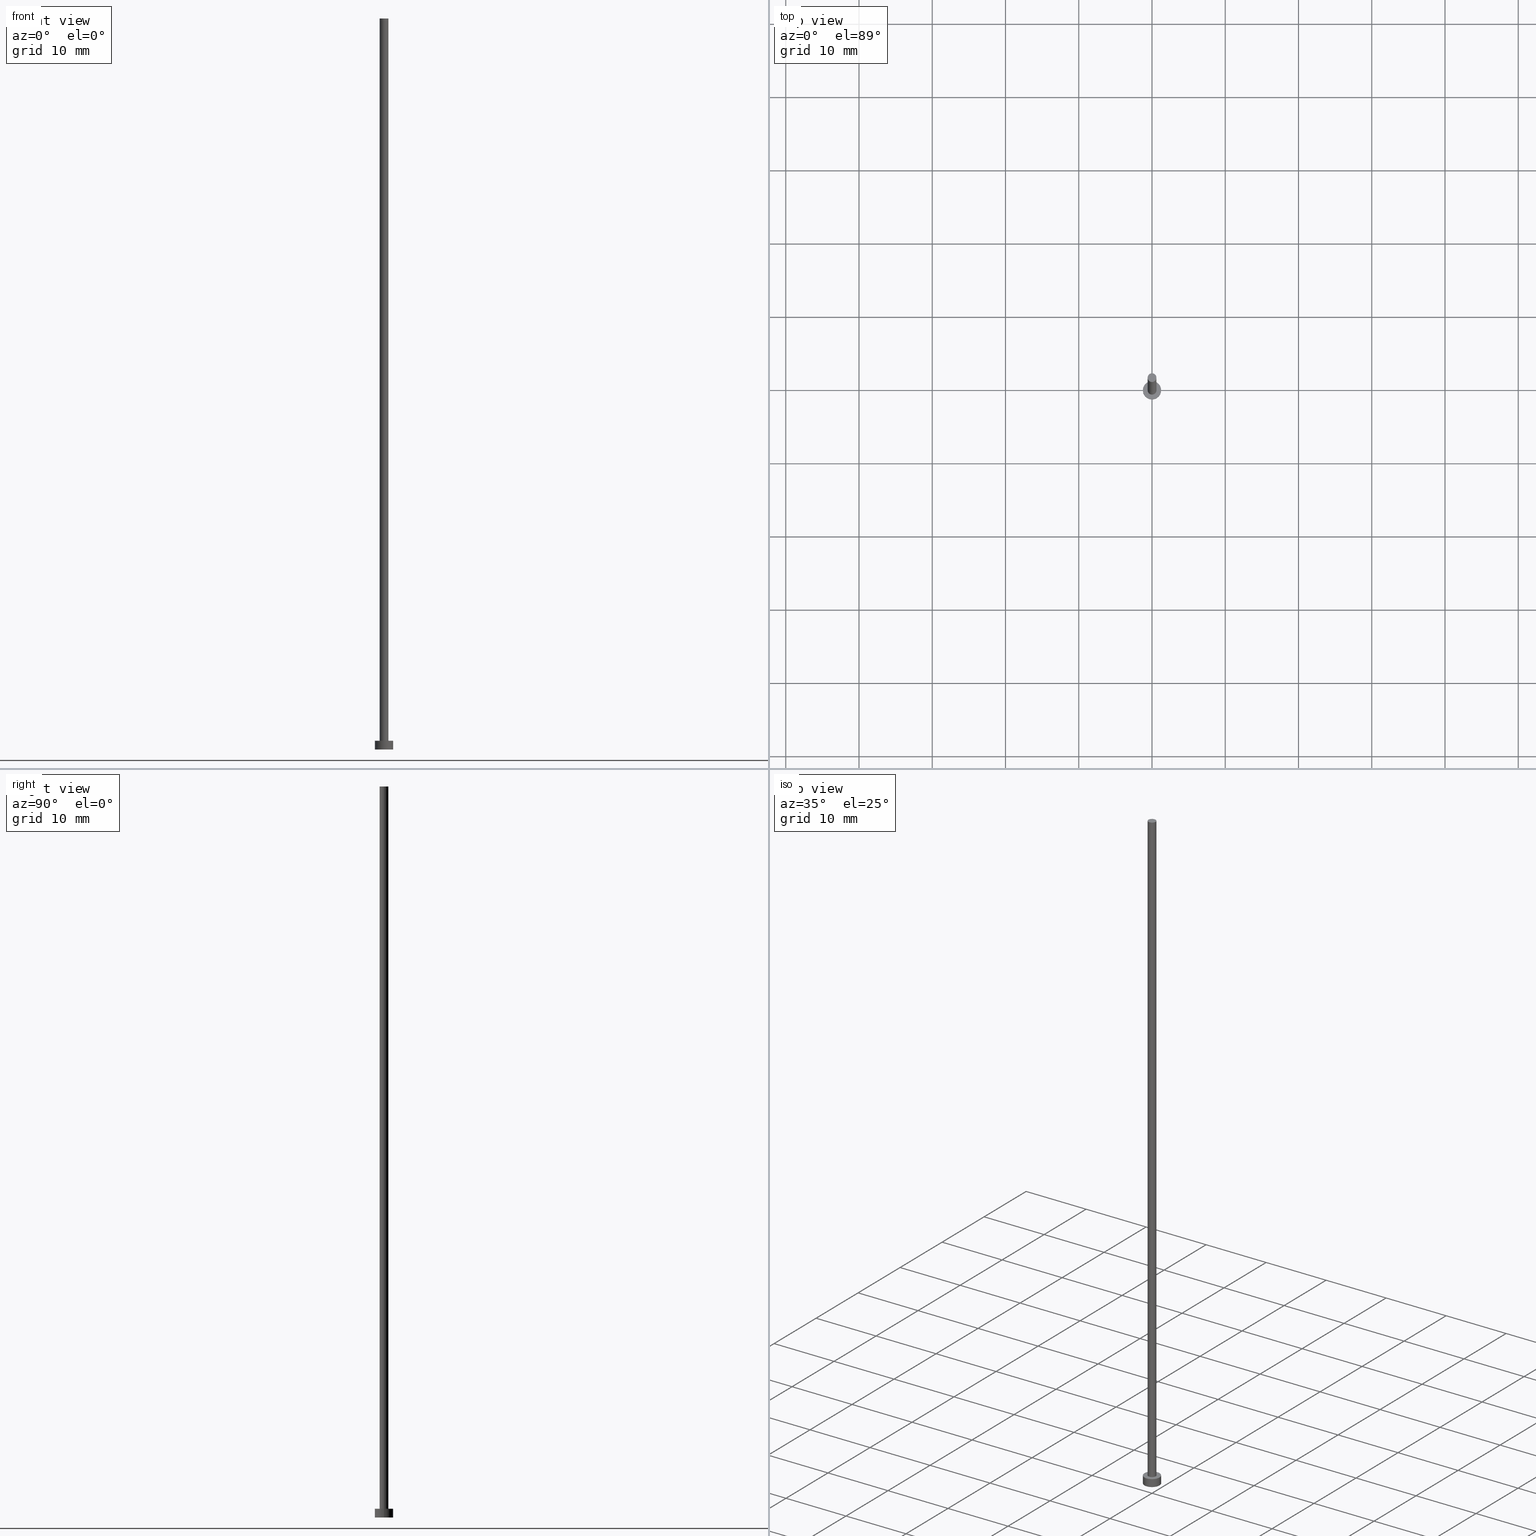
[diagram: canonical four-view strip — front | top / right | iso, engineering-drawing reading convention]
A machine part, canonical four-view strip (front | top / right | iso — engineering-drawing reading convention). The complete STEP part file that produces these views, byte-faithful:
ISO-10303-21;
HEADER;
FILE_DESCRIPTION (( 'STEP AP203' ),
    '1' );
FILE_NAME ('b9a1.STEP',
    '2023-03-08T08:14:58',
    ( '' ),
    ( '' ),
    'SwSTEP 2.0',
    'SolidWorks 2019',
    '' );
FILE_SCHEMA (( 'CONFIG_CONTROL_DESIGN' ));
ENDSEC;

DATA;
#1 = CALENDAR_DATE ( 2023, 8, 3 ) ;
#2 = DIRECTION ( 'NONE',  ( 1.000000000000000000, 0.000000000000000000, 0.000000000000000000 ) ) ;
#3 = ORIENTED_EDGE ( 'NONE', *, *, #179, .T. ) ;
#4 = CC_DESIGN_PERSON_AND_ORGANIZATION_ASSIGNMENT ( #163, #156, ( #100 ) ) ;
#5 = PERSON ( 'NEUR�EN�', 'NEUR�EN�', 'NEUR�EN�', ('NEUR�EN�'), ('NEUR�EN�'), ('NEUR�EN�') ) ;
#6 = DATE_TIME_ROLE ( 'classification_date' ) ;
#7 = VERTEX_POINT ( 'NONE', #85 ) ;
#8 = EDGE_LOOP ( 'NONE', ( #138, #244, #229, #241 ) ) ;
#9 = ORIENTED_EDGE ( 'NONE', *, *, #203, .F. ) ;
#10 = DIRECTION ( 'NONE',  ( 1.000000000000000000, 0.000000000000000000, 0.000000000000000000 ) ) ;
#11 = CIRCLE ( 'NONE', #110, 0.5999999999999999778 ) ;
#12 = CARTESIAN_POINT ( 'NONE',  ( -0.5999999999999999778, 0.000000000000000000, 1.199999999999999956 ) ) ;
#13 = APPROVAL ( #130, 'NEUR�EN�' ) ;
#14 = CARTESIAN_POINT ( 'NONE',  ( 0.000000000000000000, 0.000000000000000000, 99.79999999999999716 ) ) ;
#15 = CARTESIAN_POINT ( 'NONE',  ( -1.250000000000000000, 0.000000000000000000, 1.199999999999999956 ) ) ;
#16 = AXIS2_PLACEMENT_3D ( 'NONE', #52, #251, #98 ) ;
#17 = LINE ( 'NONE', #150, #80 ) ;
#18 = CC_DESIGN_DATE_AND_TIME_ASSIGNMENT ( #157, #6, ( #162 ) ) ;
#19 = APPLICATION_PROTOCOL_DEFINITION ( 'international standard', 'config_control_design', 1994, #25 ) ;
#20 = COORDINATED_UNIVERSAL_TIME_OFFSET ( 1, 0, .AHEAD. ) ;
#21 = DIRECTION ( 'NONE',  ( 1.000000000000000000, 0.000000000000000000, 0.000000000000000000 ) ) ;
#22 = PERSON_AND_ORGANIZATION ( #5, #212 ) ;
#23 = PRODUCT_RELATED_PRODUCT_CATEGORY ( 'detail', '', ( #204 ) ) ;
#24 = EDGE_LOOP ( 'NONE', ( #107, #225 ) ) ;
#25 = APPLICATION_CONTEXT ( 'configuration controlled 3d designs of mechanical parts and assemblies' ) ;
#26 = APPROVAL_DATE_TIME ( #205, #175 ) ;
#27 = VERTEX_POINT ( 'NONE', #67 ) ;
#28 = CC_DESIGN_APPROVAL ( #13, ( #137 ) ) ;
#29 = ADVANCED_FACE ( 'NONE', ( #159, #228 ), #73, .T. ) ;
#30 = DIRECTION ( 'NONE',  ( 1.000000000000000000, 0.000000000000000000, 0.000000000000000000 ) ) ;
#31 = CARTESIAN_POINT ( 'NONE',  ( 1.250000000000000000, 1.530808498934191571E-16, 0.000000000000000000 ) ) ;
#32 = EDGE_CURVE ( 'NONE', #83, #42, #145, .T. ) ;
#33 = CIRCLE ( 'NONE', #118, 1.250000000000000000 ) ;
#34 = DIRECTION ( 'NONE',  ( -1.000000000000000000, 0.000000000000000000, 0.000000000000000000 ) ) ;
#35 = CARTESIAN_POINT ( 'NONE',  ( 1.250000000000000000, 1.530808498934191571E-16, 1.199999999999999956 ) ) ;
#36 = CARTESIAN_POINT ( 'NONE',  ( 0.000000000000000000, 0.000000000000000000, 1.199999999999999956 ) ) ;
#37 = APPROVAL_DATE_TIME ( #255, #13 ) ;
#38 = CC_DESIGN_DATE_AND_TIME_ASSIGNMENT ( #197, #103, ( #137 ) ) ;
#39 = DIRECTION ( 'NONE',  ( 1.000000000000000000, 0.000000000000000000, 0.000000000000000000 ) ) ;
#40 = EDGE_CURVE ( 'NONE', #7, #46, #214, .T. ) ;
#41 = PERSON_AND_ORGANIZATION_ROLE ( 'classification_officer' ) ;
#42 = VERTEX_POINT ( 'NONE', #12 ) ;
#43 = ORIENTED_EDGE ( 'NONE', *, *, #199, .F. ) ;
#44 = CIRCLE ( 'NONE', #191, 1.250000000000000000 ) ;
#45 = CALENDAR_DATE ( 2023, 8, 3 ) ;
#46 = VERTEX_POINT ( 'NONE', #128 ) ;
#47 = ADVANCED_FACE ( 'NONE', ( #124 ), #126, .T. ) ;
#48 = ORIENTED_EDGE ( 'NONE', *, *, #122, .F. ) ;
#49 = LOCAL_TIME ( 9, 14, 58.00000000000000000, #224 ) ;
#50 = CARTESIAN_POINT ( 'NONE',  ( 0.000000000000000000, 0.000000000000000000, 99.79999999999999716 ) ) ;
#51 = DIRECTION ( 'NONE',  ( 1.000000000000000000, 0.000000000000000000, 0.000000000000000000 ) ) ;
#52 = CARTESIAN_POINT ( 'NONE',  ( 0.000000000000000000, 0.000000000000000000, 0.000000000000000000 ) ) ;
#53 = CARTESIAN_POINT ( 'NONE',  ( 0.000000000000000000, 0.000000000000000000, 99.79999999999999716 ) ) ;
#54 = DIRECTION ( 'NONE',  ( -0.000000000000000000, -0.000000000000000000, -1.000000000000000000 ) ) ;
#55 = DIRECTION ( 'NONE',  ( -0.000000000000000000, -0.000000000000000000, -1.000000000000000000 ) ) ;
#56 = CIRCLE ( 'NONE', #200, 0.5999999999999999778 ) ;
#57 = COORDINATED_UNIVERSAL_TIME_OFFSET ( 1, 0, .AHEAD. ) ;
#58 = AXIS2_PLACEMENT_3D ( 'NONE', #112, #171, #10 ) ;
#59 = PERSON_AND_ORGANIZATION ( #5, #212 ) ;
#60 = ADVANCED_FACE ( 'NONE', ( #169 ), #215, .T. ) ;
#61 = APPROVAL_DATE_TIME ( #81, #149 ) ;
#62 =( NAMED_UNIT ( * ) SI_UNIT ( $, .STERADIAN. ) SOLID_ANGLE_UNIT ( ) );
#63 = CALENDAR_DATE ( 2023, 8, 3 ) ;
#64 = EDGE_LOOP ( 'NONE', ( #164, #139 ) ) ;
#65 = AXIS2_PLACEMENT_3D ( 'NONE', #14, #108, #253 ) ;
#66 =( GEOMETRIC_REPRESENTATION_CONTEXT ( 3 ) GLOBAL_UNCERTAINTY_ASSIGNED_CONTEXT ( ( #208 ) ) GLOBAL_UNIT_ASSIGNED_CONTEXT ( ( #102, #131, #62 ) ) REPRESENTATION_CONTEXT ( 'NONE', 'WORKASPACE' ) );
#67 = CARTESIAN_POINT ( 'NONE',  ( 1.250000000000000000, 1.530808498934191571E-16, 1.199999999999999956 ) ) ;
#68 = CARTESIAN_POINT ( 'NONE',  ( 0.000000000000000000, 0.000000000000000000, 99.79999999999999716 ) ) ;
#69 = AXIS2_PLACEMENT_3D ( 'NONE', #209, #143, #190 ) ;
#70 = EDGE_CURVE ( 'NONE', #42, #46, #11, .T. ) ;
#71 = DIRECTION ( 'NONE',  ( 0.000000000000000000, 0.000000000000000000, 1.000000000000000000 ) ) ;
#72 = FACE_OUTER_BOUND ( 'NONE', #90, .T. ) ;
#73 = PLANE ( 'NONE',  #69 ) ;
#74 = ADVANCED_BREP_SHAPE_REPRESENTATION ( 'b9a1', ( #117, #243 ), #66 ) ;
#75 = DIRECTION ( 'NONE',  ( 0.000000000000000000, 0.000000000000000000, 1.000000000000000000 ) ) ;
#76 = APPROVAL_ROLE ( '' ) ;
#77 = PERSON_AND_ORGANIZATION_ROLE ( 'creator' ) ;
#78 = AXIS2_PLACEMENT_3D ( 'NONE', #125, #54, #34 ) ;
#79 = ADVANCED_FACE ( 'NONE', ( #72 ), #211, .F. ) ;
#80 = VECTOR ( 'NONE', #55, 1000.000000000000000 ) ;
#81 = DATE_AND_TIME ( #1, #134 ) ;
#82 = EDGE_CURVE ( 'NONE', #83, #7, #56, .T. ) ;
#83 = VERTEX_POINT ( 'NONE', #233 ) ;
#84 = APPROVAL_STATUS ( 'not_yet_approved' ) ;
#85 = CARTESIAN_POINT ( 'NONE',  ( 0.5999999999999999778, 7.347880794884117764E-17, 99.79999999999999716 ) ) ;
#86 = ADVANCED_FACE ( 'NONE', ( #127 ), #170, .T. ) ;
#87 = SECURITY_CLASSIFICATION_LEVEL ( 'unclassified' ) ;
#88 = VERTEX_POINT ( 'NONE', #31 ) ;
#89 = PERSON_AND_ORGANIZATION_ROLE ( 'creator' ) ;
#90 = EDGE_LOOP ( 'NONE', ( #9, #187 ) ) ;
#91 = LINE ( 'NONE', #35, #168 ) ;
#92 = EDGE_CURVE ( 'NONE', #88, #183, #151, .T. ) ;
#93 = CARTESIAN_POINT ( 'NONE',  ( 0.000000000000000000, 0.000000000000000000, 1.199999999999999956 ) ) ;
#94 = AXIS2_PLACEMENT_3D ( 'NONE', #36, #249, #113 ) ;
#95 = CARTESIAN_POINT ( 'NONE',  ( 0.000000000000000000, 0.000000000000000000, 1.199999999999999956 ) ) ;
#96 = DIRECTION ( 'NONE',  ( 0.000000000000000000, 0.000000000000000000, 1.000000000000000000 ) ) ;
#97 = ADVANCED_FACE ( 'NONE', ( #192 ), #193, .T. ) ;
#98 = DIRECTION ( 'NONE',  ( 1.000000000000000000, 0.000000000000000000, -0.000000000000000000 ) ) ;
#99 = VECTOR ( 'NONE', #252, 1000.000000000000000 ) ;
#100 = PRODUCT_DEFINITION_FORMATION_WITH_SPECIFIED_SOURCE ( 'LIBOVOLN�', '', #204, .NOT_KNOWN. ) ;
#101 = COORDINATED_UNIVERSAL_TIME_OFFSET ( 1, 0, .AHEAD. ) ;
#102 =( LENGTH_UNIT ( ) NAMED_UNIT ( * ) SI_UNIT ( .MILLI., .METRE. ) );
#103 = DATE_TIME_ROLE ( 'creation_date' ) ;
#104 = CARTESIAN_POINT ( 'NONE',  ( 0.000000000000000000, 0.000000000000000000, 1.199999999999999956 ) ) ;
#105 = AXIS2_PLACEMENT_3D ( 'NONE', #53, #248, #231 ) ;
#106 = ORIENTED_EDGE ( 'NONE', *, *, #237, .T. ) ;
#107 = ORIENTED_EDGE ( 'NONE', *, *, #199, .T. ) ;
#108 = DIRECTION ( 'NONE',  ( -0.000000000000000000, -0.000000000000000000, -1.000000000000000000 ) ) ;
#109 = DIRECTION ( 'NONE',  ( 1.000000000000000000, 0.000000000000000000, -0.000000000000000000 ) ) ;
#110 = AXIS2_PLACEMENT_3D ( 'NONE', #95, #167, #232 ) ;
#111 = CARTESIAN_POINT ( 'NONE',  ( 0.000000000000000000, 0.000000000000000000, 0.000000000000000000 ) ) ;
#112 = CARTESIAN_POINT ( 'NONE',  ( 0.000000000000000000, 0.000000000000000000, 1.199999999999999956 ) ) ;
#113 = DIRECTION ( 'NONE',  ( 1.000000000000000000, 0.000000000000000000, 0.000000000000000000 ) ) ;
#114 = APPROVAL_PERSON_ORGANIZATION ( #173, #149, #76 ) ;
#115 = CARTESIAN_POINT ( 'NONE',  ( 0.000000000000000000, 0.000000000000000000, 0.000000000000000000 ) ) ;
#116 = APPLICATION_PROTOCOL_DEFINITION ( 'international standard', 'config_control_design', 1994, #227 ) ;
#117 = MANIFOLD_SOLID_BREP ( 'P�idat vysunut�m3', #180 ) ;
#118 = AXIS2_PLACEMENT_3D ( 'NONE', #93, #96, #188 ) ;
#119 = PERSON_AND_ORGANIZATION ( #5, #212 ) ;
#120 = CARTESIAN_POINT ( 'NONE',  ( 0.000000000000000000, 0.000000000000000000, 99.79999999999999716 ) ) ;
#121 = VERTEX_POINT ( 'NONE', #15 ) ;
#122 = EDGE_CURVE ( 'NONE', #27, #121, #33, .T. ) ;
#123 = ORIENTED_EDGE ( 'NONE', *, *, #179, .F. ) ;
#124 = FACE_OUTER_BOUND ( 'NONE', #8, .T. ) ;
#125 = CARTESIAN_POINT ( 'NONE',  ( 0.000000000000000000, 0.000000000000000000, 1.199999999999999956 ) ) ;
#126 = CYLINDRICAL_SURFACE ( 'NONE', #105, 0.5999999999999999778 ) ;
#127 = FACE_OUTER_BOUND ( 'NONE', #153, .T. ) ;
#128 = CARTESIAN_POINT ( 'NONE',  ( 0.5999999999999999778, 7.347880794884117764E-17, 1.199999999999999956 ) ) ;
#129 = EDGE_CURVE ( 'NONE', #27, #88, #91, .T. ) ;
#130 = APPROVAL_STATUS ( 'not_yet_approved' ) ;
#131 =( NAMED_UNIT ( * ) PLANE_ANGLE_UNIT ( ) SI_UNIT ( $, .RADIAN. ) );
#132 = LOCAL_TIME ( 9, 14, 58.00000000000000000, #101 ) ;
#133 = APPROVAL_PERSON_ORGANIZATION ( #119, #13, #155 ) ;
#134 = LOCAL_TIME ( 9, 14, 58.00000000000000000, #57 ) ;
#135 = PERSON_AND_ORGANIZATION ( #5, #212 ) ;
#136 = ORIENTED_EDGE ( 'NONE', *, *, #129, .F. ) ;
#137 = PRODUCT_DEFINITION ( 'NEZN�M�', '', #100, #140 ) ;
#138 = ORIENTED_EDGE ( 'NONE', *, *, #40, .F. ) ;
#139 = ORIENTED_EDGE ( 'NONE', *, *, #230, .T. ) ;
#140 = DESIGN_CONTEXT ( 'detailed design', #25, 'design' ) ;
#141 = SHAPE_DEFINITION_REPRESENTATION ( #154, #74 ) ;
#142 = ORIENTED_EDGE ( 'NONE', *, *, #203, .T. ) ;
#143 = DIRECTION ( 'NONE',  ( 0.000000000000000000, 0.000000000000000000, 1.000000000000000000 ) ) ;
#144 = CC_DESIGN_APPROVAL ( #149, ( #100 ) ) ;
#145 = LINE ( 'NONE', #148, #99 ) ;
#146 = DIRECTION ( 'NONE',  ( 0.000000000000000000, 0.000000000000000000, 1.000000000000000000 ) ) ;
#147 = DIRECTION ( 'NONE',  ( 0.000000000000000000, 0.000000000000000000, 1.000000000000000000 ) ) ;
#148 = CARTESIAN_POINT ( 'NONE',  ( -0.5999999999999999778, 0.000000000000000000, 99.79999999999999716 ) ) ;
#149 = APPROVAL ( #238, 'NEUR�EN�' ) ;
#150 = CARTESIAN_POINT ( 'NONE',  ( -1.250000000000000000, 0.000000000000000000, 1.199999999999999956 ) ) ;
#151 = CIRCLE ( 'NONE', #222, 1.250000000000000000 ) ;
#152 = CIRCLE ( 'NONE', #94, 1.250000000000000000 ) ;
#153 = EDGE_LOOP ( 'NONE', ( #136, #43, #106, #142 ) ) ;
#154 = PRODUCT_DEFINITION_SHAPE ( 'NONE', 'NONE',  #137 ) ;
#155 = APPROVAL_ROLE ( '' ) ;
#156 = PERSON_AND_ORGANIZATION_ROLE ( 'design_supplier' ) ;
#157 = DATE_AND_TIME ( #45, #186 ) ;
#158 = ORIENTED_EDGE ( 'NONE', *, *, #32, .F. ) ;
#159 = FACE_BOUND ( 'NONE', #219, .T. ) ;
#160 = EDGE_LOOP ( 'NONE', ( #221, #201, #3, #158 ) ) ;
#161 = CIRCLE ( 'NONE', #58, 0.5999999999999999778 ) ;
#162 = SECURITY_CLASSIFICATION ( '', '', #87 ) ;
#163 = PERSON_AND_ORGANIZATION ( #5, #212 ) ;
#164 = ORIENTED_EDGE ( 'NONE', *, *, #82, .T. ) ;
#165 = DIRECTION ( 'NONE',  ( -0.000000000000000000, -0.000000000000000000, -1.000000000000000000 ) ) ;
#166 = AXIS2_PLACEMENT_3D ( 'NONE', #68, #146, #109 ) ;
#167 = DIRECTION ( 'NONE',  ( 0.000000000000000000, 0.000000000000000000, 1.000000000000000000 ) ) ;
#168 = VECTOR ( 'NONE', #165, 1000.000000000000000 ) ;
#169 = FACE_OUTER_BOUND ( 'NONE', #64, .T. ) ;
#170 = CYLINDRICAL_SURFACE ( 'NONE', #78, 1.250000000000000000 ) ;
#171 = DIRECTION ( 'NONE',  ( 0.000000000000000000, 0.000000000000000000, 1.000000000000000000 ) ) ;
#172 = AXIS2_PLACEMENT_3D ( 'NONE', #104, #217, #216 ) ;
#173 = PERSON_AND_ORGANIZATION ( #5, #212 ) ;
#174 = FACE_OUTER_BOUND ( 'NONE', #181, .T. ) ;
#175 = APPROVAL ( #84, 'NEUR�EN�' ) ;
#176 = CC_DESIGN_SECURITY_CLASSIFICATION ( #162, ( #100 ) ) ;
#177 = CYLINDRICAL_SURFACE ( 'NONE', #172, 1.250000000000000000 ) ;
#178 = DIRECTION ( 'NONE',  ( 0.000000000000000000, 0.000000000000000000, 1.000000000000000000 ) ) ;
#179 = EDGE_CURVE ( 'NONE', #46, #42, #161, .T. ) ;
#180 = CLOSED_SHELL ( 'NONE', ( #97, #247, #86, #29, #79, #47, #60 ) ) ;
#181 = EDGE_LOOP ( 'NONE', ( #48, #246, #184, #206 ) ) ;
#182 = PERSON_AND_ORGANIZATION ( #5, #212 ) ;
#183 = VERTEX_POINT ( 'NONE', #235 ) ;
#184 = ORIENTED_EDGE ( 'NONE', *, *, #92, .T. ) ;
#185 = AXIS2_PLACEMENT_3D ( 'NONE', #120, #236, #21 ) ;
#186 = LOCAL_TIME ( 9, 14, 58.00000000000000000, #245 ) ;
#187 = ORIENTED_EDGE ( 'NONE', *, *, #92, .F. ) ;
#188 = DIRECTION ( 'NONE',  ( 1.000000000000000000, 0.000000000000000000, 0.000000000000000000 ) ) ;
#189 = CC_DESIGN_PERSON_AND_ORGANIZATION_ASSIGNMENT ( #59, #195, ( #204 ) ) ;
#190 = DIRECTION ( 'NONE',  ( 1.000000000000000000, 0.000000000000000000, -0.000000000000000000 ) ) ;
#191 = AXIS2_PLACEMENT_3D ( 'NONE', #194, #71, #39 ) ;
#192 = FACE_OUTER_BOUND ( 'NONE', #160, .T. ) ;
#193 = CYLINDRICAL_SURFACE ( 'NONE', #65, 0.5999999999999999778 ) ;
#194 = CARTESIAN_POINT ( 'NONE',  ( 0.000000000000000000, 0.000000000000000000, 0.000000000000000000 ) ) ;
#195 = PERSON_AND_ORGANIZATION_ROLE ( 'design_owner' ) ;
#196 = CALENDAR_DATE ( 2023, 8, 3 ) ;
#197 = DATE_AND_TIME ( #198, #207 ) ;
#198 = CALENDAR_DATE ( 2023, 8, 3 ) ;
#199 = EDGE_CURVE ( 'NONE', #121, #27, #152, .T. ) ;
#200 = AXIS2_PLACEMENT_3D ( 'NONE', #50, #75, #51 ) ;
#201 = ORIENTED_EDGE ( 'NONE', *, *, #40, .T. ) ;
#202 = ORIENTED_EDGE ( 'NONE', *, *, #70, .F. ) ;
#203 = EDGE_CURVE ( 'NONE', #183, #88, #44, .T. ) ;
#204 = PRODUCT ( 'b9a1', 'b9a1', '', ( #218 ) ) ;
#205 = DATE_AND_TIME ( #63, #49 ) ;
#206 = ORIENTED_EDGE ( 'NONE', *, *, #237, .F. ) ;
#207 = LOCAL_TIME ( 9, 14, 58.00000000000000000, #20 ) ;
#208 = UNCERTAINTY_MEASURE_WITH_UNIT (LENGTH_MEASURE( 1.000000000000000082E-05 ), #102, 'distance_accuracy_value', 'NONE');
#209 = CARTESIAN_POINT ( 'NONE',  ( 0.000000000000000000, 0.000000000000000000, 1.199999999999999956 ) ) ;
#210 = CARTESIAN_POINT ( 'NONE',  ( 0.5999999999999999778, 7.347880794884117764E-17, 99.79999999999999716 ) ) ;
#211 = PLANE ( 'NONE',  #16 ) ;
#212 = ORGANIZATION ( 'NEUR�EN�', 'NEUR�EN�', '' ) ;
#213 = CC_DESIGN_APPROVAL ( #175, ( #162 ) ) ;
#214 = LINE ( 'NONE', #210, #240 ) ;
#215 = PLANE ( 'NONE',  #166 ) ;
#216 = DIRECTION ( 'NONE',  ( -1.000000000000000000, 0.000000000000000000, 0.000000000000000000 ) ) ;
#217 = DIRECTION ( 'NONE',  ( -0.000000000000000000, -0.000000000000000000, -1.000000000000000000 ) ) ;
#218 = MECHANICAL_CONTEXT ( 'NONE', #227, 'mechanical' ) ;
#219 = EDGE_LOOP ( 'NONE', ( #202, #123 ) ) ;
#220 = APPROVAL_ROLE ( '' ) ;
#221 = ORIENTED_EDGE ( 'NONE', *, *, #230, .F. ) ;
#222 = AXIS2_PLACEMENT_3D ( 'NONE', #111, #147, #30 ) ;
#223 = CIRCLE ( 'NONE', #185, 0.5999999999999999778 ) ;
#224 = COORDINATED_UNIVERSAL_TIME_OFFSET ( 1, 0, .AHEAD. ) ;
#225 = ORIENTED_EDGE ( 'NONE', *, *, #122, .T. ) ;
#226 = CC_DESIGN_PERSON_AND_ORGANIZATION_ASSIGNMENT ( #22, #89, ( #100 ) ) ;
#227 = APPLICATION_CONTEXT ( 'configuration controlled 3d designs of mechanical parts and assemblies' ) ;
#228 = FACE_OUTER_BOUND ( 'NONE', #24, .T. ) ;
#229 = ORIENTED_EDGE ( 'NONE', *, *, #32, .T. ) ;
#230 = EDGE_CURVE ( 'NONE', #7, #83, #223, .T. ) ;
#231 = DIRECTION ( 'NONE',  ( -1.000000000000000000, 0.000000000000000000, 0.000000000000000000 ) ) ;
#232 = DIRECTION ( 'NONE',  ( 1.000000000000000000, 0.000000000000000000, 0.000000000000000000 ) ) ;
#233 = CARTESIAN_POINT ( 'NONE',  ( -0.5999999999999999778, 0.000000000000000000, 99.79999999999999716 ) ) ;
#234 = DIRECTION ( 'NONE',  ( -0.000000000000000000, -0.000000000000000000, -1.000000000000000000 ) ) ;
#235 = CARTESIAN_POINT ( 'NONE',  ( -1.250000000000000000, 0.000000000000000000, 0.000000000000000000 ) ) ;
#236 = DIRECTION ( 'NONE',  ( 0.000000000000000000, 0.000000000000000000, 1.000000000000000000 ) ) ;
#237 = EDGE_CURVE ( 'NONE', #121, #183, #17, .T. ) ;
#238 = APPROVAL_STATUS ( 'not_yet_approved' ) ;
#239 = PERSON_AND_ORGANIZATION ( #5, #212 ) ;
#240 = VECTOR ( 'NONE', #234, 1000.000000000000000 ) ;
#241 = ORIENTED_EDGE ( 'NONE', *, *, #70, .T. ) ;
#242 = CC_DESIGN_PERSON_AND_ORGANIZATION_ASSIGNMENT ( #239, #77, ( #137 ) ) ;
#243 = AXIS2_PLACEMENT_3D ( 'NONE', #115, #178, #2 ) ;
#244 = ORIENTED_EDGE ( 'NONE', *, *, #82, .F. ) ;
#245 = COORDINATED_UNIVERSAL_TIME_OFFSET ( 1, 0, .AHEAD. ) ;
#246 = ORIENTED_EDGE ( 'NONE', *, *, #129, .T. ) ;
#247 = ADVANCED_FACE ( 'NONE', ( #174 ), #177, .T. ) ;
#248 = DIRECTION ( 'NONE',  ( -0.000000000000000000, -0.000000000000000000, -1.000000000000000000 ) ) ;
#249 = DIRECTION ( 'NONE',  ( 0.000000000000000000, 0.000000000000000000, 1.000000000000000000 ) ) ;
#250 = APPROVAL_PERSON_ORGANIZATION ( #135, #175, #220 ) ;
#251 = DIRECTION ( 'NONE',  ( 0.000000000000000000, 0.000000000000000000, 1.000000000000000000 ) ) ;
#252 = DIRECTION ( 'NONE',  ( -0.000000000000000000, -0.000000000000000000, -1.000000000000000000 ) ) ;
#253 = DIRECTION ( 'NONE',  ( -1.000000000000000000, 0.000000000000000000, 0.000000000000000000 ) ) ;
#254 = CC_DESIGN_PERSON_AND_ORGANIZATION_ASSIGNMENT ( #182, #41, ( #162 ) ) ;
#255 = DATE_AND_TIME ( #196, #132 ) ;
ENDSEC;
END-ISO-10303-21;
